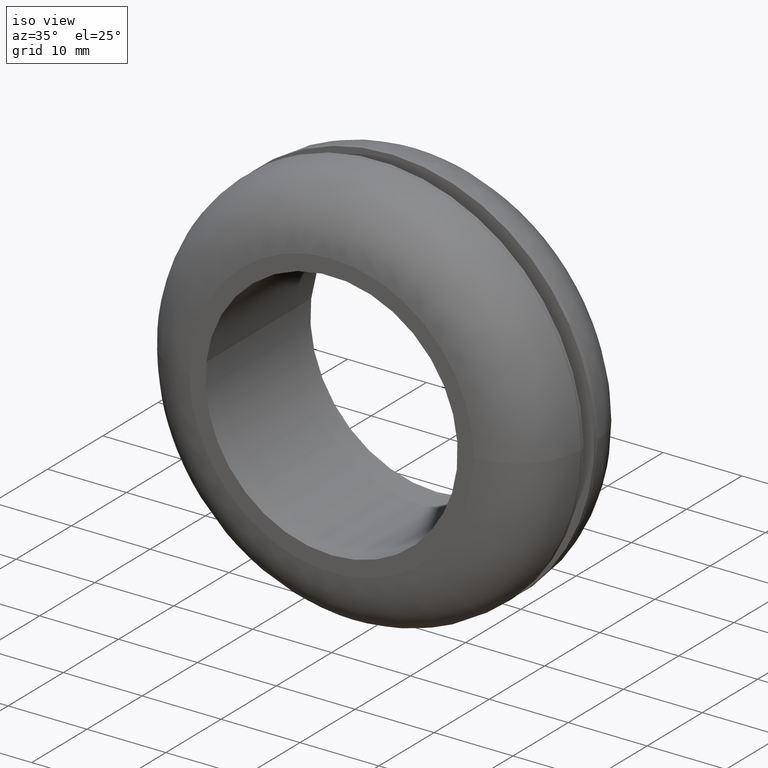
[diagram: clean part render]
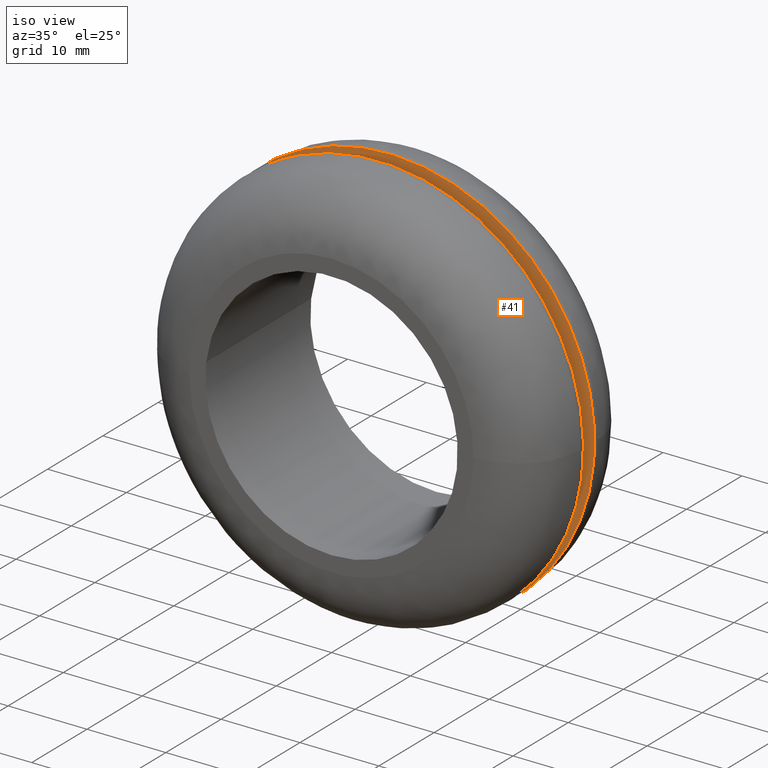
[diagram: same view with one face highlighted and labeled with its STEP entity id]
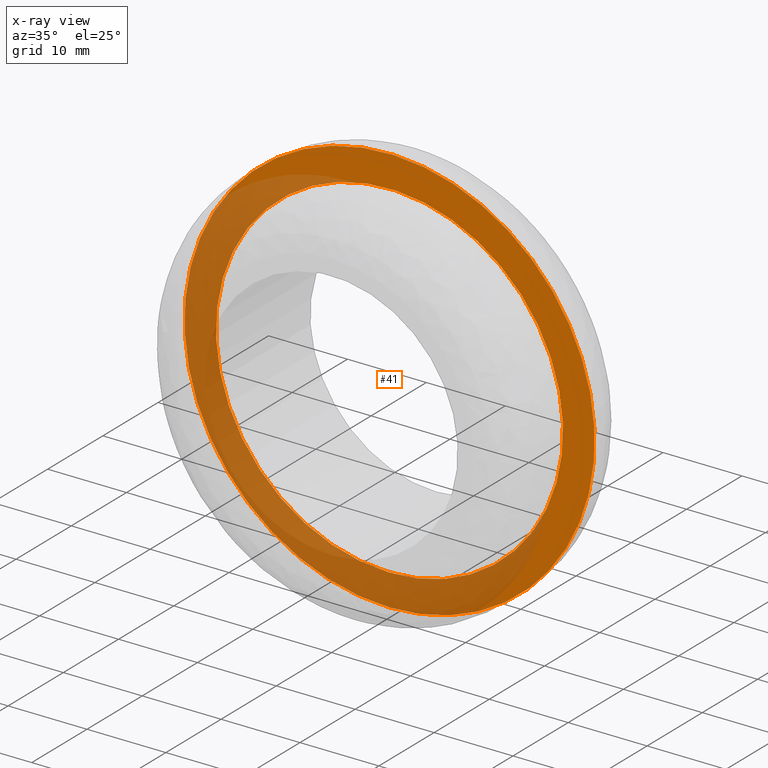
[diagram: x-ray of the same camera — body ghosted, the highlighted face saturated]
A machine part, iso view. The second image highlights one B-rep face of the part: STEP entity #41.
The next image is the same camera in x-ray: the body ghosted, the highlighted face saturated — about 53% of this face is hidden behind the body in this view.
In plain terms, the highlighted planar face has unit normal (0, 1, 0).
Its self-contained STEP definition (entity closure, byte-faithful):
#41=ADVANCED_FACE('',(#68,#69),#67,.F.);
#67=PLANE('',#229);
#68=FACE_OUTER_BOUND('',#230,.T.);
#69=FACE_BOUND('',#231,.T.);
#226=CARTESIAN_POINT('',(-5.40399851961E+001,1.05000000000E+001,-3.38000000000E+001));
#227=DIRECTION('',(0.00000000000E+000,1.00000000000E+000,0.00000000000E+000));
#228=DIRECTION('',(0.00000000000E+000,0.00000000000E+000,1.00000000000E+000));
#229=AXIS2_PLACEMENT_3D('',#226,#227,#228);
#230=EDGE_LOOP('',(#394,#395,#396));
#231=EDGE_LOOP('',(#397,#398,#399));
#394=ORIENTED_EDGE('',*,*,#498,.T.);
#395=ORIENTED_EDGE('',*,*,#499,.T.);
#396=ORIENTED_EDGE('',*,*,#500,.T.);
#397=ORIENTED_EDGE('',*,*,#501,.F.);
#398=ORIENTED_EDGE('',*,*,#502,.F.);
#399=ORIENTED_EDGE('',*,*,#503,.F.);
#498=EDGE_CURVE('',#586,#587,#588,.T.);
#499=EDGE_CURVE('',#587,#594,#595,.T.);
#500=EDGE_CURVE('',#594,#586,#601,.T.);
#501=EDGE_CURVE('',#607,#608,#609,.T.);
#502=EDGE_CURVE('',#615,#607,#616,.T.);
#503=EDGE_CURVE('',#608,#615,#622,.T.);
#586=VERTEX_POINT('',#926);
#587=VERTEX_POINT('',#927);
#588=CIRCLE('',#931,2.60000000000E+001);
#594=VERTEX_POINT('',#932);
#595=CIRCLE('',#936,2.60000000000E+001);
#601=CIRCLE('',#940,2.60000000000E+001);
#607=VERTEX_POINT('',#941);
#608=VERTEX_POINT('',#942);
#609=CIRCLE('',#946,2.20000000000E+001);
#615=VERTEX_POINT('',#947);
#616=CIRCLE('',#951,2.20000000000E+001);
#622=CIRCLE('',#955,2.20000000000E+001);
#926=CARTESIAN_POINT('',(-1.02894038775E-014,1.05000000000E+001,-2.60000000000E+001));
#927=CARTESIAN_POINT('',(2.27478691160E+001,1.05000000000E+001,1.25910464491E+001));
#928=CARTESIAN_POINT('',(-3.55271367880E-015,1.05000000000E+001,-1.06581410364E-014));
#929=DIRECTION('',(0.00000000000E+000,-1.00000000000E+000,0.00000000000E+000));
#930=DIRECTION('',(-1.36642833800E-016,-0.00000000000E+000,-1.00000000000E+000));
#931=AXIS2_PLACEMENT_3D('',#928,#929,#930);
#932=CARTESIAN_POINT('',(-2.27486056636E+001,1.05000000000E+001,-1.25897156586E+001));
#933=CARTESIAN_POINT('',(-3.55271367880E-015,1.05000000000E+001,-1.06581410364E-014));
#934=DIRECTION('',(0.00000000000E+000,-1.00000000000E+000,0.00000000000E+000));
#935=DIRECTION('',(-1.36642833800E-016,-0.00000000000E+000,-1.00000000000E+000));
#936=AXIS2_PLACEMENT_3D('',#933,#934,#935);
#937=CARTESIAN_POINT('',(-3.55271367880E-015,1.05000000000E+001,-1.06581410364E-014));
#938=DIRECTION('',(0.00000000000E+000,-1.00000000000E+000,0.00000000000E+000));
#939=DIRECTION('',(-1.36642833800E-016,-0.00000000000E+000,-1.00000000000E+000));
#940=AXIS2_PLACEMENT_3D('',#937,#938,#939);
#941=CARTESIAN_POINT('',(-2.18462095800E+001,1.05000000000E+001,2.59675316231E+000));
#942=CARTESIAN_POINT('',(2.22044604925E-015,1.05000000000E+001,-2.20000000000E+001));
#943=CARTESIAN_POINT('',(7.17648163118E-013,1.05000000000E+001,1.55964130499E-012));
#944=DIRECTION('',(-5.52603027727E-016,-1.00000000000E+000,-4.64900289718E-015));
#945=DIRECTION('',(-3.21409565629E-014,4.64900289718E-015,-1.00000000000E+000));
#946=AXIS2_PLACEMENT_3D('',#943,#944,#945);
#947=CARTESIAN_POINT('',(2.18457604430E+001,1.05000000000E+001,-2.60052892023E+000));
#948=CARTESIAN_POINT('',(7.17648163118E-013,1.05000000000E+001,1.55964130499E-012));
#949=DIRECTION('',(-5.52603027727E-016,-1.00000000000E+000,-4.64900289718E-015));
#950=DIRECTION('',(-3.21409565629E-014,4.64900289718E-015,-1.00000000000E+000));
#951=AXIS2_PLACEMENT_3D('',#948,#949,#950);
#952=CARTESIAN_POINT('',(7.17648163118E-013,1.05000000000E+001,1.55964130499E-012));
#953=DIRECTION('',(-5.52603027727E-016,-1.00000000000E+000,-4.64900289718E-015));
#954=DIRECTION('',(-3.21409565629E-014,4.64900289718E-015,-1.00000000000E+000));
#955=AXIS2_PLACEMENT_3D('',#952,#953,#954);